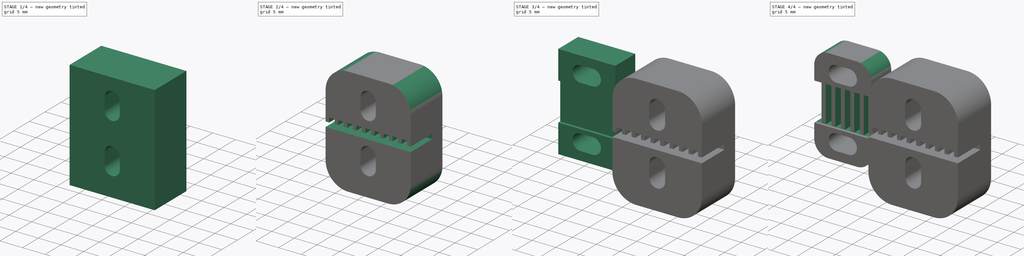
[diagram: build sequence overview — one tinted view per stage of 4, left to right]
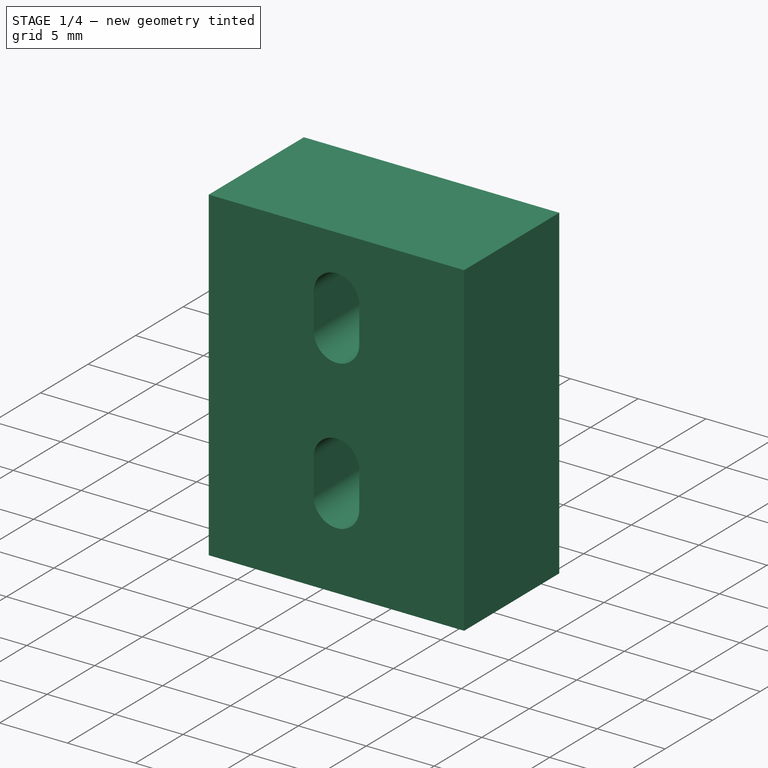
[diagram: stage 1 of 4 — iso view after this stage's code; geometry added in this stage tinted green]
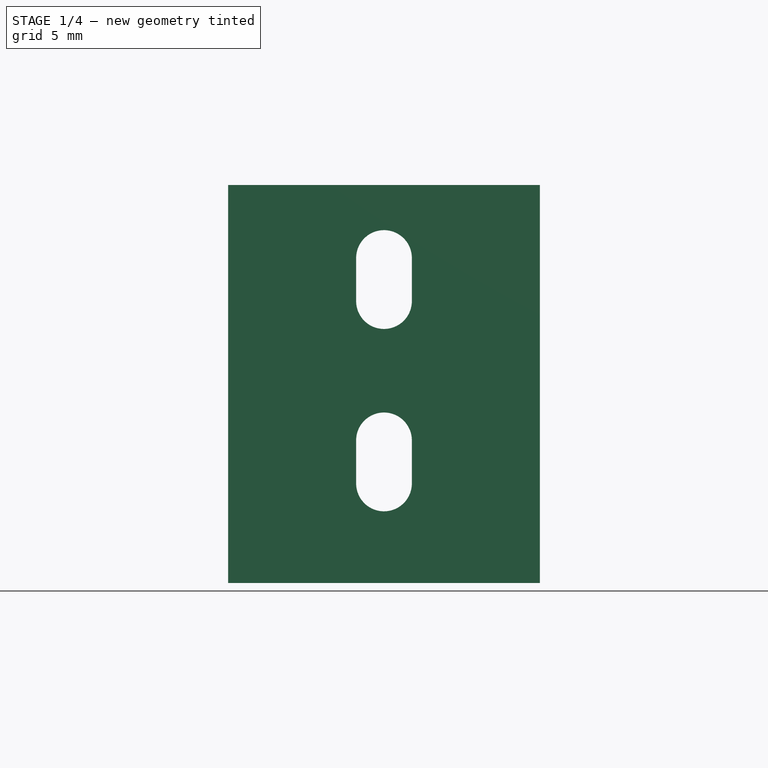
[diagram: stage 1 of 4 — front view after this stage's code; geometry added in this stage tinted green]
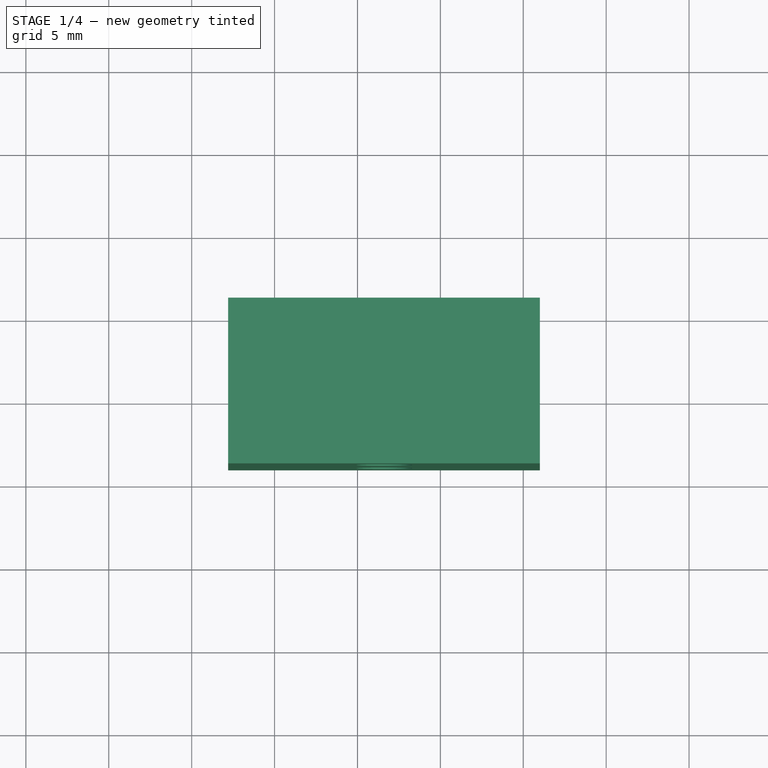
[diagram: stage 1 of 4 — top view after this stage's code; geometry added in this stage tinted green]
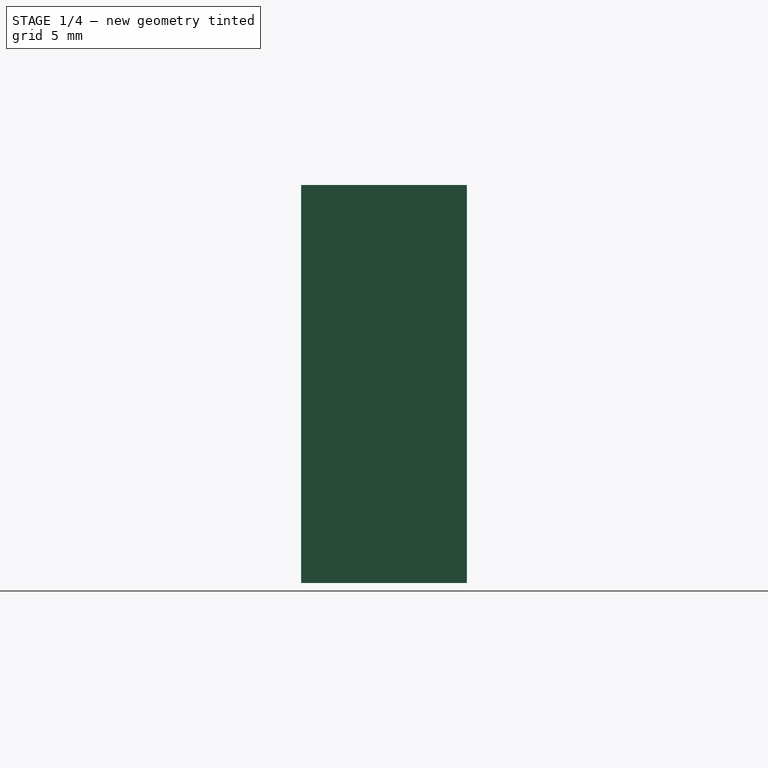
[diagram: stage 1 of 4 — right view after this stage's code; geometry added in this stage tinted green]
FCSTD DOCUMENT  (FreeCAD 0.16R6706 (Git))
Label: belt-mounts
License: All rights reserved
LicenseURL: http://en.wikipedia.org/wiki/All_rights_reserved
objects: Sketcher::SketchObject×6, PartDesign::Pocket×6, Part::Box×2, PartDesign::Fillet×2, App::DocumentObjectGroup×1
note: 22 computed .brp shape members not serialized (recipe doc carries the construction recipe); baked Part::Feature solids carry a one-line shape summary decoded from their .brp

FEATURE [Sketcher::SketchObject] Sketch012
  Placement = pos=(28,46,0) rot=(0,0.707107,0.707107;3.14159rad)
  Support = -> Box002 [Face4]
  sketch-geometry (8):
    g0: ArcOfCircle CenterX=-7.3 CenterY=16.5 CenterZ=0 NormalX=0 NormalY=0 NormalZ=1 Radius=1.68 StartAngle=1.5708 EndAngle=4.71239
    g1: ArcOfCircle CenterX=-4.7 CenterY=16.5 CenterZ=0 NormalX=0 NormalY=0 NormalZ=1 Radius=1.68 StartAngle=4.71239 EndAngle=7.85398
    g2: LineSegment StartX=-7.3 StartY=14.82 StartZ=0 EndX=-4.7 EndY=14.82 EndZ=0
    g3: LineSegment StartX=-7.3 StartY=18.18 StartZ=0 EndX=-4.7 EndY=18.18 EndZ=0
    g4: ArcOfCircle CenterX=-7.3 CenterY=3.5 CenterZ=0 NormalX=0 NormalY=0 NormalZ=1 Radius=1.68 StartAngle=1.5708 EndAngle=4.71239
    g5: ArcOfCircle CenterX=-4.7 CenterY=3.5 CenterZ=0 NormalX=0 NormalY=0 NormalZ=1 Radius=1.68 StartAngle=4.71239 EndAngle=7.85398
    g6: LineSegment StartX=-7.3 StartY=1.82 StartZ=0 EndX=-4.7 EndY=1.82 EndZ=0
    g7: LineSegment StartX=-7.3 StartY=5.18 StartZ=0 EndX=-4.7 EndY=5.18 EndZ=0
  constraints (20):
    c: Tangent(g0,g3) = 1.5708
    c: Tangent(g0,g2) = -1.5708
    c: Tangent(g2,g1) = -1.5708
    c: Tangent(g3,g1) = 1.5708
    c: Horizontal(g2)
    c: Equal(g0,g1)
    c: Tangent(g4,g7) = 1.5708
    c: Tangent(g4,g6) = -1.5708
    c: Tangent(g6,g5) = -1.5708
    c: Tangent(g7,g5) = 1.5708
    c: Horizontal(g6)
    c: Equal(g4,g5)
    c: Distance(g7) = 2.6
    c: Distance(g5,g5) = 3.36
    c: Equal(g7,g2)
    c: Distance(g0,g0) = 3.36
    c: Distance(g1,g5) = 13
    c: DistanceX(g-2,g5) = -4.7
    c: DistanceX(g-2,g1) = -4.7
    c: DistanceY(g-1,g4) = 3.5
FEATURE [Part::Box] Box003  label="belt block002"
  Height = 24
  Length = 18.8
  Placement = pos=(61,46,-3) rot=(0,0,1;3.14159rad)
  Width = 10
FEATURE [Sketcher::SketchObject] Sketch
  Placement = pos=(61,46,-3) rot=(0,0.707107,0.707107;3.14159rad)
  Support = -> Box003 [Face3]
  sketch-geometry (8):
    g0: ArcOfCircle CenterX=9.4 CenterY=19.6 CenterZ=0 NormalX=0 NormalY=0 NormalZ=1 Radius=1.68 StartAngle=0 EndAngle=3.14159
    g1: ArcOfCircle CenterX=9.4 CenterY=17 CenterZ=0 NormalX=0 NormalY=0 NormalZ=1 Radius=1.68 StartAngle=3.14159 EndAngle=6.28319
    g2: LineSegment StartX=7.72 StartY=19.6 StartZ=0 EndX=7.72 EndY=17 EndZ=0
    g3: LineSegment StartX=11.08 StartY=19.6 StartZ=0 EndX=11.08 EndY=17 EndZ=0
    g4: ArcOfCircle CenterX=9.4 CenterY=8.6 CenterZ=0 NormalX=0 NormalY=0 NormalZ=1 Radius=1.68 StartAngle=0 EndAngle=3.14159
    g5: ArcOfCircle CenterX=9.4 CenterY=6 CenterZ=0 NormalX=0 NormalY=0 NormalZ=1 Radius=1.68 StartAngle=3.14159 EndAngle=6.28319
    g6: LineSegment StartX=7.72 StartY=8.6 StartZ=0 EndX=7.72 EndY=6 EndZ=0
    g7: LineSegment StartX=11.08 StartY=8.6 StartZ=0 EndX=11.08 EndY=6 EndZ=0
  constraints (14):
    c: Tangent(g0,g2) = -1.5708
    c: Tangent(g2,g1) = -1.5708
    c: Vertical(g2)
    c: Equal(g0,g1)
    c: Tangent(g4,g6) = -1.5708
    c: Tangent(g6,g5) = -1.5708
    c: Vertical(g6)
    c: Equal(g4,g5)
    c: DistanceX(g-2,g0) = 9.4
    c: Distance(g0,g0) = 3.36
    c: Equal(g0,g4)
    c: DistanceX(g-2,g4) = 9.4
    c: DistanceY(g-1,g5) = 6
    c: Distance(g5,g1) = 11
FEATURE [PartDesign::Pocket] Pocket
  Length = 9
  Placement = pos=(61,46,-3) rot=(0,0,1;3.14159rad)
  Sketch = -> Sketch
  Type = 1
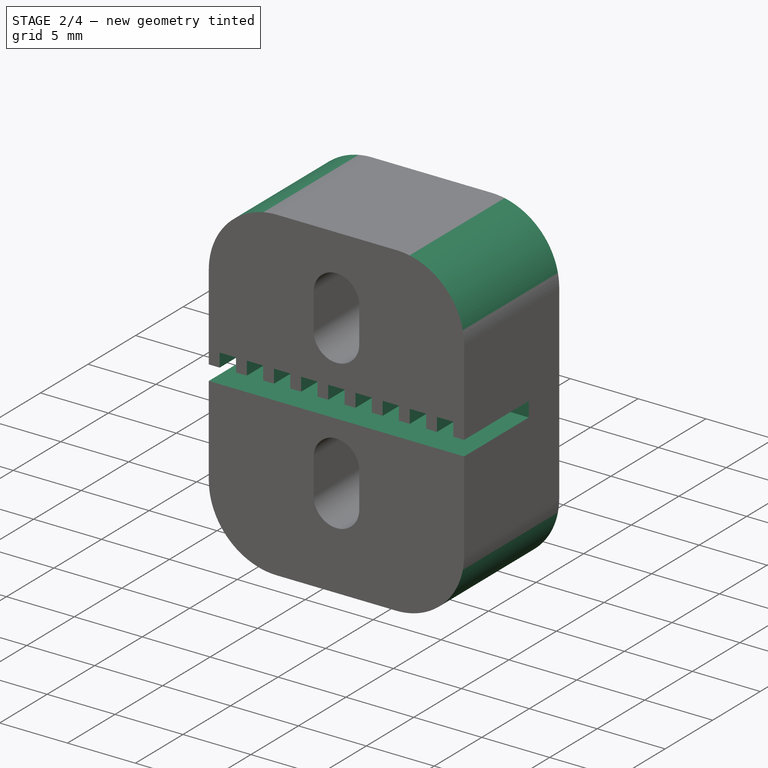
[diagram: stage 2 of 4 — iso view after this stage's code; geometry added in this stage tinted green]
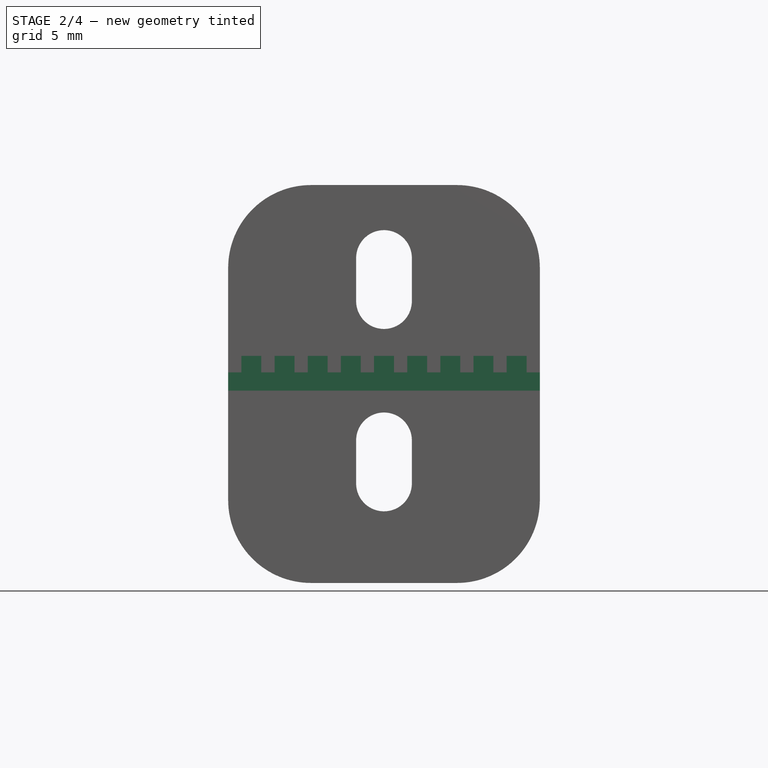
[diagram: stage 2 of 4 — front view after this stage's code; geometry added in this stage tinted green]
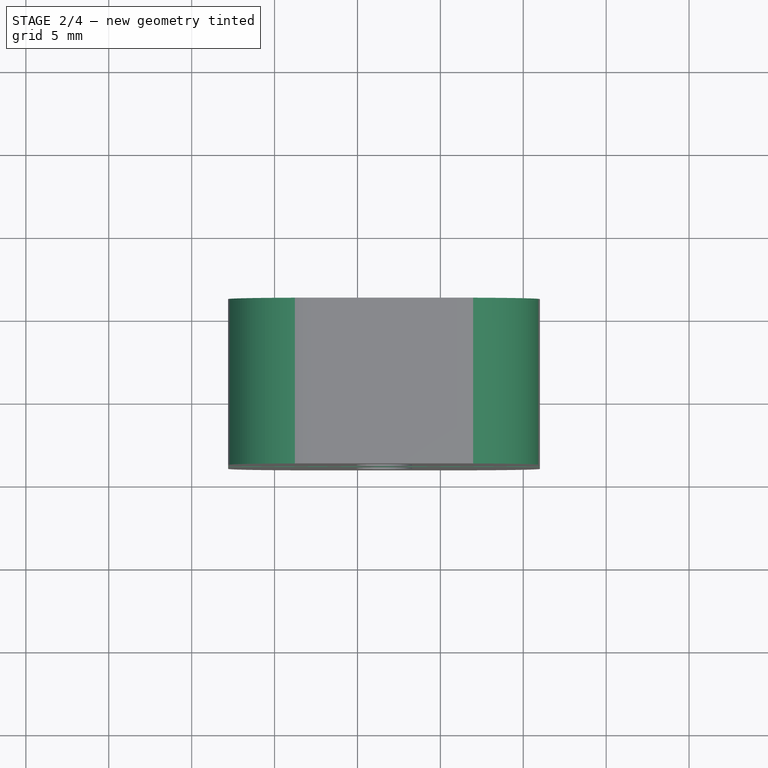
[diagram: stage 2 of 4 — top view after this stage's code; geometry added in this stage tinted green]
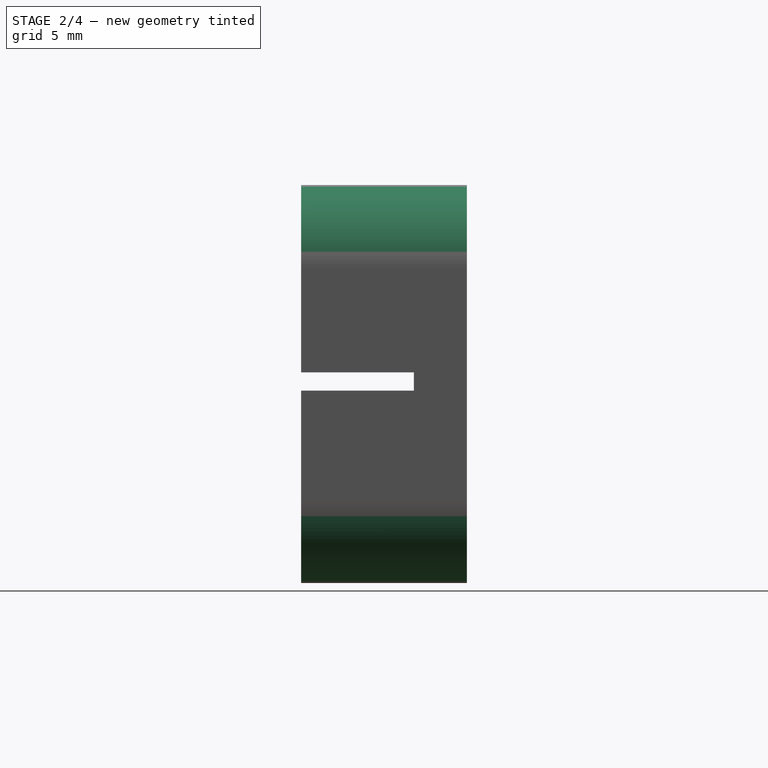
[diagram: stage 2 of 4 — right view after this stage's code; geometry added in this stage tinted green]
FEATURE [Sketcher::SketchObject] Sketch014
  Placement = pos=(61,36,-3) rot=(1,0,0;1.5708rad)
  Support = -> Pocket [Face4]
  sketch-geometry (4):
    g0: LineSegment StartX=-19.5035 StartY=12.7 StartZ=0 EndX=0.903535 EndY=12.7 EndZ=0
    g1: LineSegment StartX=0.903535 StartY=12.7 StartZ=0 EndX=0.903535 EndY=11.6 EndZ=0
    g2: LineSegment StartX=0.903535 StartY=11.6 StartZ=0 EndX=-19.5035 EndY=11.6 EndZ=0
    g3: LineSegment StartX=-19.5035 StartY=11.6 StartZ=0 EndX=-19.5035 EndY=12.7 EndZ=0
  constraints (10):
    c: Coincident(g0,g1)
    c: Coincident(g1,g2)
    c: Coincident(g2,g3)
    c: Coincident(g3,g0)
    c: Horizontal(g0)
    c: Horizontal(g2)
    c: Vertical(g1)
    c: Vertical(g3)
    c: Distance(g0,g2) = 1.1
    c: DistanceY(g-1,g1) = 11.6
FEATURE [PartDesign::Pocket] Pocket013
  Length = 6.8
  Placement = pos=(61,46,-3) rot=(0,0,1;3.14159rad)
  Sketch = -> Sketch014
  Type = 0
FEATURE [Sketcher::SketchObject] Sketch015
  Placement = pos=(61,46,9.7) rot=(0,1,0;3.14159rad)
  Support = -> Pocket013 [Face4]
  sketch-geometry (36):
    g0: LineSegment StartX=0.8 StartY=-3.2 StartZ=0 EndX=2 EndY=-3.2 EndZ=0
    g1: LineSegment StartX=2 StartY=-3.2 StartZ=0 EndX=2 EndY=-10.2 EndZ=0
    g2: LineSegment StartX=2 StartY=-10.2 StartZ=0 EndX=0.8 EndY=-10.2 EndZ=0
    g3: LineSegment StartX=0.8 StartY=-10.2 StartZ=0 EndX=0.8 EndY=-3.2 EndZ=0
    g4: LineSegment StartX=2.8 StartY=-10.2 StartZ=0 EndX=2.8 EndY=-3.2 EndZ=0
    g5: LineSegment StartX=2.8 StartY=-3.2 StartZ=0 EndX=4 EndY=-3.2 EndZ=0
    g6: LineSegment StartX=4 StartY=-3.2 StartZ=0 EndX=4 EndY=-10.2 EndZ=0
    g7: LineSegment StartX=4 StartY=-10.2 StartZ=0 EndX=2.8 EndY=-10.2 EndZ=0
    g8: LineSegment StartX=4.8 StartY=-3.2 StartZ=0 EndX=6 EndY=-3.2 EndZ=0
    g9: LineSegment StartX=6 StartY=-3.2 StartZ=0 EndX=6 EndY=-10.2 EndZ=0
    g10: LineSegment StartX=6 StartY=-10.2 StartZ=0 EndX=4.8 EndY=-10.2 EndZ=0
    g11: LineSegment StartX=4.8 StartY=-10.2 StartZ=0 EndX=4.8 EndY=-3.2 EndZ=0
    g12: LineSegment StartX=8 StartY=-10.2 StartZ=0 EndX=6.8 EndY=-10.2 EndZ=0
    g13: LineSegment StartX=6.8 StartY=-10.2 StartZ=0 EndX=6.8 EndY=-3.2 EndZ=0
    g14: LineSegment StartX=6.8 StartY=-3.2 StartZ=0 EndX=8 EndY=-3.2 EndZ=0
    g15: LineSegment StartX=8 StartY=-3.2 StartZ=0 EndX=8 EndY=-10.2 EndZ=0
    g16: LineSegment StartX=10 StartY=-10.2 StartZ=0 EndX=8.8 EndY=-10.2 EndZ=0
    g17: LineSegment StartX=8.8 StartY=-10.2 StartZ=0 EndX=8.8 EndY=-3.2 EndZ=0
    g18: LineSegment StartX=8.8 StartY=-3.2 StartZ=0 EndX=10 EndY=-3.2 EndZ=0
    g19: LineSegment StartX=10 StartY=-3.2 StartZ=0 EndX=10 EndY=-10.2 EndZ=0
    g20: LineSegment StartX=10.8 StartY=-3.2 StartZ=0 EndX=12 EndY=-3.2 EndZ=0
    g21: LineSegment StartX=12 StartY=-3.2 StartZ=0 EndX=12 EndY=-10.2 EndZ=0
    g22: LineSegment StartX=10.8 StartY=-10.2 StartZ=0 EndX=10.8 EndY=-3.2 EndZ=0
    g23: LineSegment StartX=12 StartY=-10.2 StartZ=0 EndX=10.8 EndY=-10.2 EndZ=0
    g24: LineSegment StartX=12.8 StartY=-3.2 StartZ=0 EndX=14 EndY=-3.2 EndZ=0
    g25: LineSegment StartX=12.8 StartY=-10.2 StartZ=0 EndX=12.8 EndY=-3.2 EndZ=0
    g26: LineSegment StartX=14 StartY=-3.2 StartZ=0 EndX=14 EndY=-10.2 EndZ=0
    g27: LineSegment StartX=14 StartY=-10.2 StartZ=0 EndX=12.8 EndY=-10.2 EndZ=0
    g28: LineSegment StartX=14.8 StartY=-3.2 StartZ=0 EndX=16 EndY=-3.2 EndZ=0
    g29: LineSegment StartX=14.8 StartY=-10.2 StartZ=0 EndX=14.8 EndY=-3.2 EndZ=0
    g30: LineSegment StartX=16 StartY=-3.2 StartZ=0 EndX=16 EndY=-10.2 EndZ=0
    g31: LineSegment StartX=16 StartY=-10.2 StartZ=0 EndX=14.8 EndY=-10.2 EndZ=0
    g32: LineSegment StartX=16.8 StartY=-3.2 StartZ=0 EndX=18 EndY=-3.2 EndZ=0
    g33: LineSegment StartX=18 StartY=-3.2 StartZ=0 EndX=18 EndY=-10.2 EndZ=0
    g34: LineSegment StartX=16.8 StartY=-10.2 StartZ=0 EndX=16.8 EndY=-3.2 EndZ=0
    g35: LineSegment StartX=18 StartY=-10.2 StartZ=0 EndX=16.8 EndY=-10.2 EndZ=0
  constraints (108):
    c: Coincident(g0,g1)
    c: Coincident(g1,g2)
    c: Coincident(g2,g3)
    c: Coincident(g3,g0)
    c: Horizontal(g0)
    c: Horizontal(g2)
    c: Vertical(g1)
    c: Vertical(g3)
    c: DistanceX(g-2,g0) = 0.8
    c: Distance(g1,g2) = 1.2
    c: Coincident(g5,g6)
    c: Coincident(g6,g7)
    c: Coincident(g7,g4)
    c: Coincident(g4,g5)
    c: Horizontal(g5)
    c: Horizontal(g7)
    c: Vertical(g6)
    c: Vertical(g4)
    c: Distance(g6,g7) = 1.2
    c: Distance(g4,g1) = 0.8
    c: Equal(g1,g4)
    c: Distance(g3) = 7
    c: Coincident(g8,g9)
    c: Coincident(g9,g10)
    c: Coincident(g10,g11)
    c: Coincident(g11,g8)
    c: Horizontal(g8)
    c: Horizontal(g10)
    c: Vertical(g9)
    c: Vertical(g11)
    c: Distance(g9,g10) = 1.2
    c: Distance(g6,g10) = 0.8
    c: Equal(g4,g11)
    c: Coincident(g14,g15)
    c: Coincident(g15,g12)
    c: Coincident(g12,g13)
    c: Coincident(g13,g14)
    c: Horizontal(g14)
    c: Horizontal(g12)
    c: Vertical(g15)
    c: Vertical(g13)
    c: Distance(g15,g12) = 1.2
    c: Equal(g13,g11)
    c: Distance(g9,g12) = 0.8
    c: Coincident(g18,g19)
    c: Coincident(g19,g16)
    c: Coincident(g16,g17)
    c: Coincident(g17,g18)
    c: Horizontal(g18)
    c: Horizontal(g16)
    c: Vertical(g19)
    c: Vertical(g17)
    c: Distance(g19,g16) = 1.2
    c: Equal(g17,g13)
    c: Distance(g16,g12) = 0.8
    c: Coincident(g20,g21)
    c: Coincident(g21,g23)
    c: Coincident(g23,g22)
    c: Coincident(g22,g20)
    c: Horizontal(g20)
    c: Horizontal(g23)
    c: Vertical(g21)
    c: Vertical(g22)
    c: Distance(g21,g23) = 1.2
    c: Equal(g22,g17)
    c: Distance(g16,g22) = 0.8
    c: Coincident(g24,g26)
    c: Coincident(g26,g27)
    c: Coincident(g27,g25)
    c: Coincident(g25,g24)
    c: Horizontal(g24)
    c: Horizontal(g27)
    c: Vertical(g26)
    c: Vertical(g25)
    c: Distance(g26,g27) = 1.2
    c: Equal(g25,g22)
    c: Distance(g21,g25) = 0.8
    c: Coincident(g28,g30)
    c: Coincident(g30,g31)
    c: Coincident(g31,g29)
    c: Coincident(g29,g28)
    c: Horizontal(g28)
    c: Horizontal(g31)
    c: Vertical(g30)
    c: Vertical(g29)
    c: Distance(g30,g31) = 1.2
    c: Equal(g25,g29)
    c: Distance(g26,g29) = 0.8
    c: Coincident(g32,g33)
    c: Coincident(g33,g35)
    c: Coincident(g35,g34)
    c: Coincident(g34,g32)
    c: Horizontal(g32)
    c: Horizontal(g35)
    c: Vertical(g33)
    c: Vertical(g34)
    c: Distance(g33,g35) = 1.2
    c: Distance(g30,g34) = 0.8
    c: Equal(g30,g34)
    c: DistanceY(g-1,g0) = -3.2
    c: DistanceY(g-1,g4) = -3.2
    c: DistanceY(g-1,g8) = -3.2
    c: DistanceY(g-1,g13) = -3.2
    c: DistanceY(g-1,g17) = -3.2
    c: DistanceY(g-1,g20) = -3.2
    c: DistanceY(g-1,g24) = -3.2
    c: DistanceY(g-1,g28) = -3.2
    c: DistanceY(g-1,g32) = -3.2
FEATURE [PartDesign::Pocket] Pocket014
  Length = 1
  Placement = pos=(61,46,-3) rot=(0,0,1;3.14159rad)
  Sketch = -> Sketch015
  Type = 0
FEATURE [PartDesign::Fillet] Fillet
  Base = -> Pocket014 [Edge10,Edge1,Edge7,Edge84]
  Placement = pos=(61,46,-3) rot=(0,0,1;3.14159rad)
  Radius = 5
FEATURE [App::DocumentObjectGroup] Group  label="one"
  Group = -> [Fillet,Pocket014,Box003,Pocket,Pocket013]
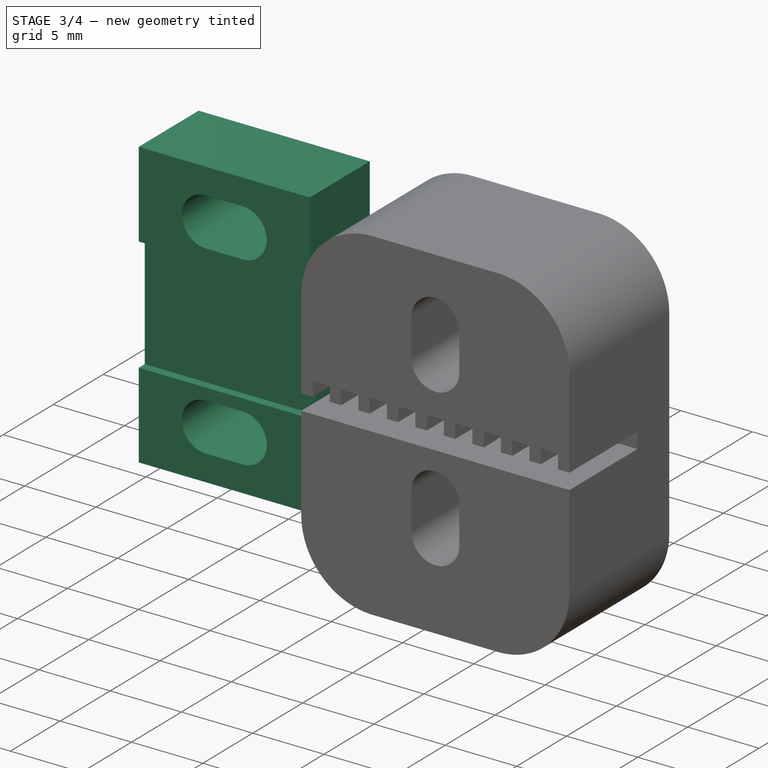
[diagram: stage 3 of 4 — iso view after this stage's code; geometry added in this stage tinted green]
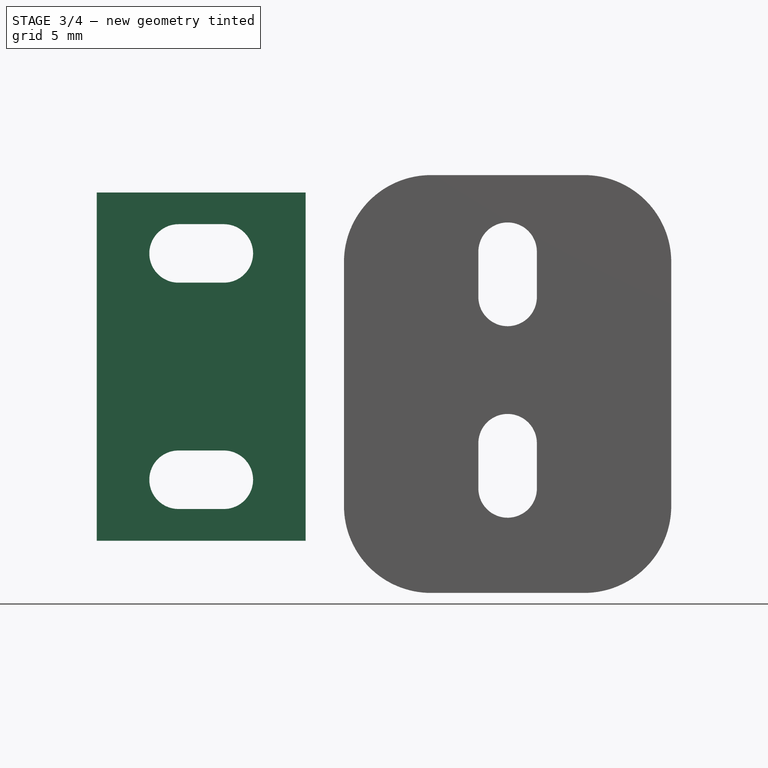
[diagram: stage 3 of 4 — front view after this stage's code; geometry added in this stage tinted green]
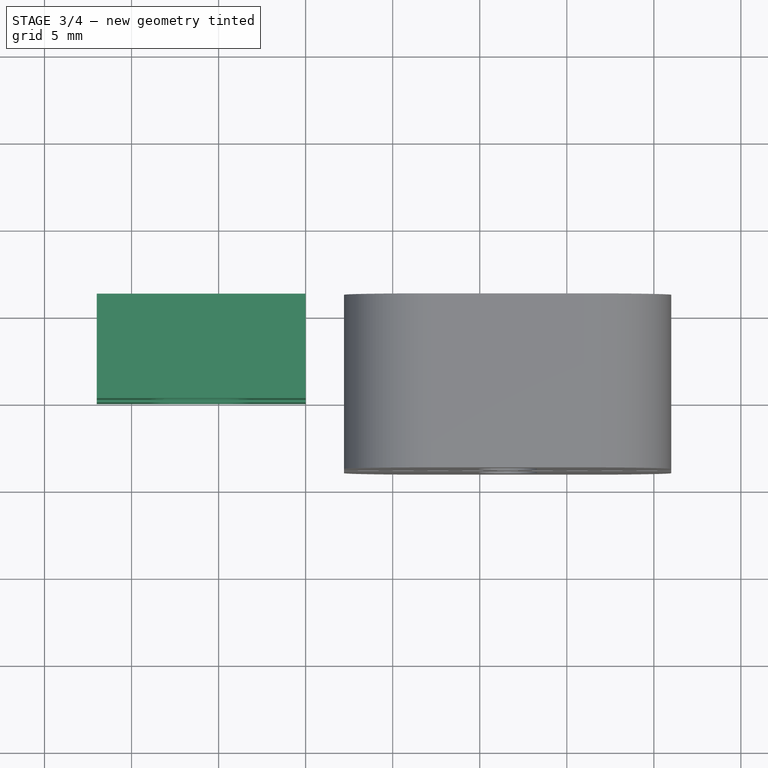
[diagram: stage 3 of 4 — top view after this stage's code; geometry added in this stage tinted green]
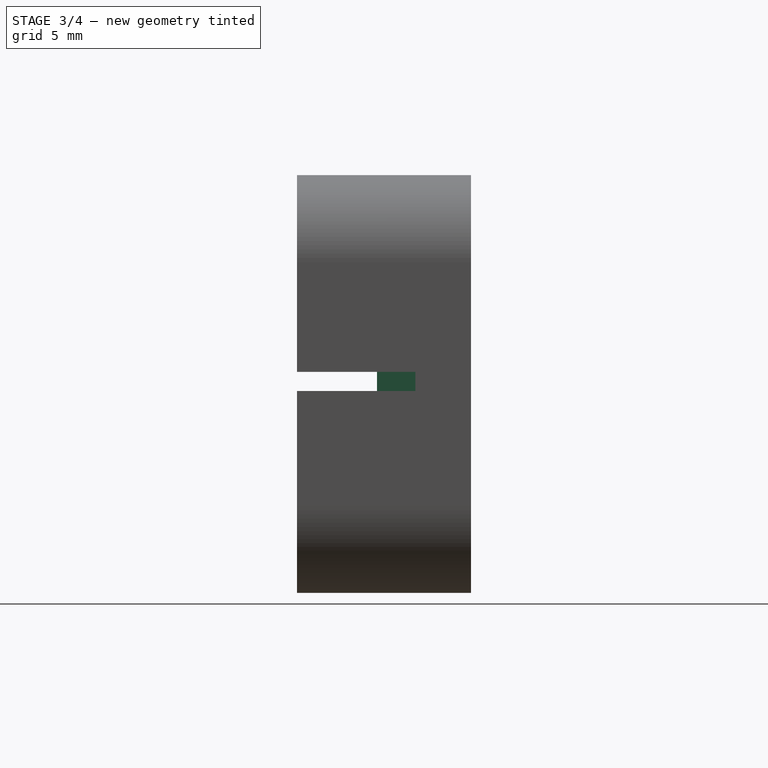
[diagram: stage 3 of 4 — right view after this stage's code; geometry added in this stage tinted green]
FEATURE [Part::Box] Box002  label="belt block001"
  Height = 20
  Length = 12
  Placement = pos=(28,40,0) rot=(0,0,1;0rad)
  Width = 6
FEATURE [PartDesign::Pocket] Pocket015
  Length = 5
  Placement = pos=(28,40,0) rot=(0,0,1;0rad)
  Sketch = -> Sketch012
  Type = 1
FEATURE [Sketcher::SketchObject] Sketch013
  Placement = pos=(28,40,0) rot=(0.57735,-0.57735,-0.57735;2.0944rad)
  Support = -> Pocket015 [Face1]
  sketch-geometry (4):
    g0: LineSegment StartX=-0.6 StartY=14 StartZ=0 EndX=0 EndY=14 EndZ=0
    g1: LineSegment StartX=0 StartY=14 StartZ=0 EndX=0 EndY=6 EndZ=0
    g2: LineSegment StartX=0 StartY=6 StartZ=0 EndX=-0.6 EndY=6 EndZ=0
    g3: LineSegment StartX=-0.6 StartY=6 StartZ=0 EndX=-0.6 EndY=14 EndZ=0
  constraints (12):
    c: Coincident(g0,g1)
    c: Coincident(g1,g2)
    c: Coincident(g2,g3)
    c: Coincident(g3,g0)
    c: Horizontal(g0)
    c: Horizontal(g2)
    c: Vertical(g1)
    c: Vertical(g3)
    c: Distance(g1) = 8
    c: Distance(g2,g1) = 0.6
    c: DistanceX(g-2,g1) = 0
    c: DistanceY(g-1,g2) = 6
FEATURE [PartDesign::Pocket] Pocket016
  Length = 5
  Placement = pos=(28,40,0) rot=(0,0,1;0rad)
  Sketch = -> Sketch013
  Type = 1
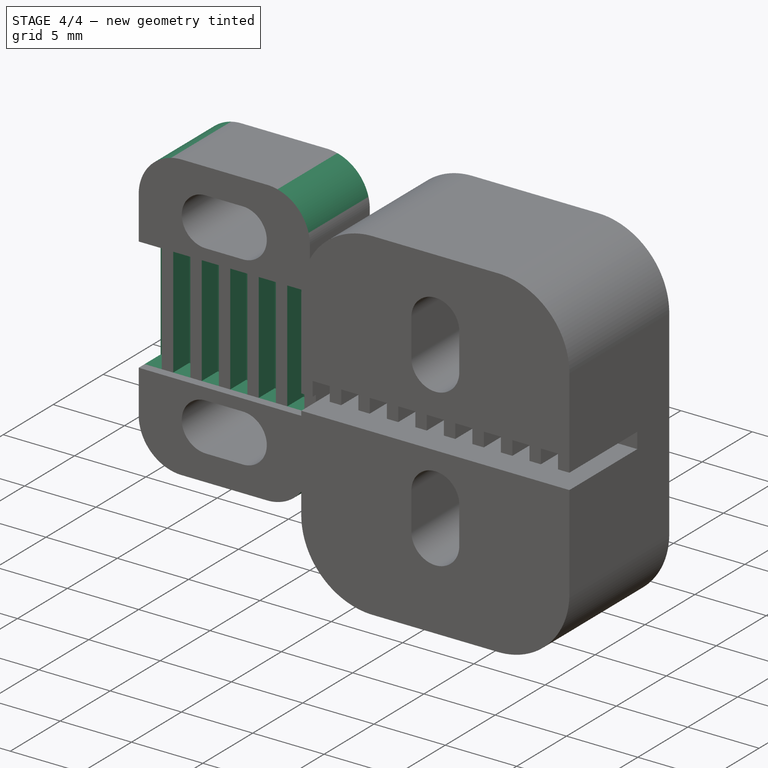
[diagram: stage 4 of 4 — iso view after this stage's code; geometry added in this stage tinted green]
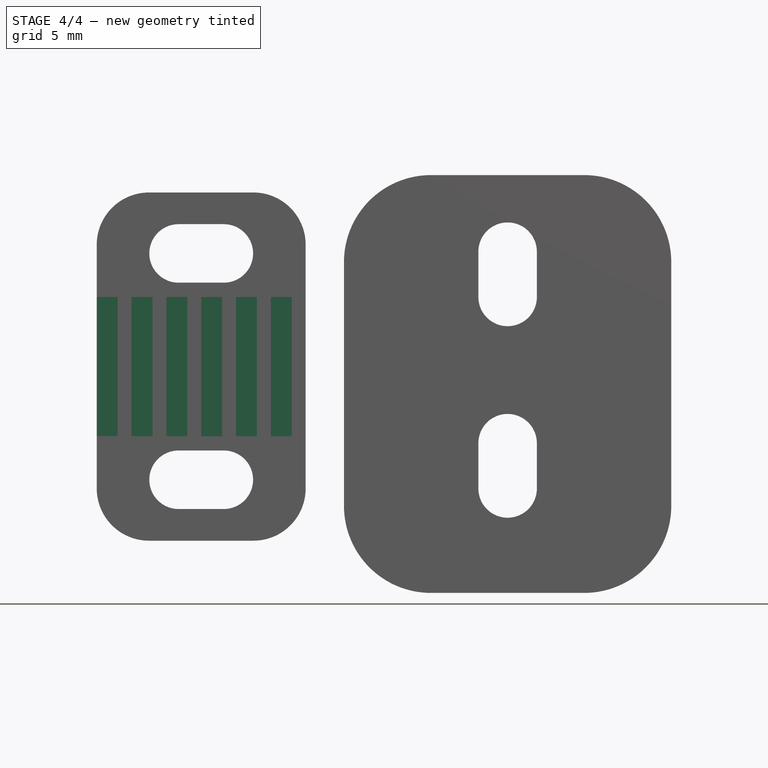
[diagram: stage 4 of 4 — front view after this stage's code; geometry added in this stage tinted green]
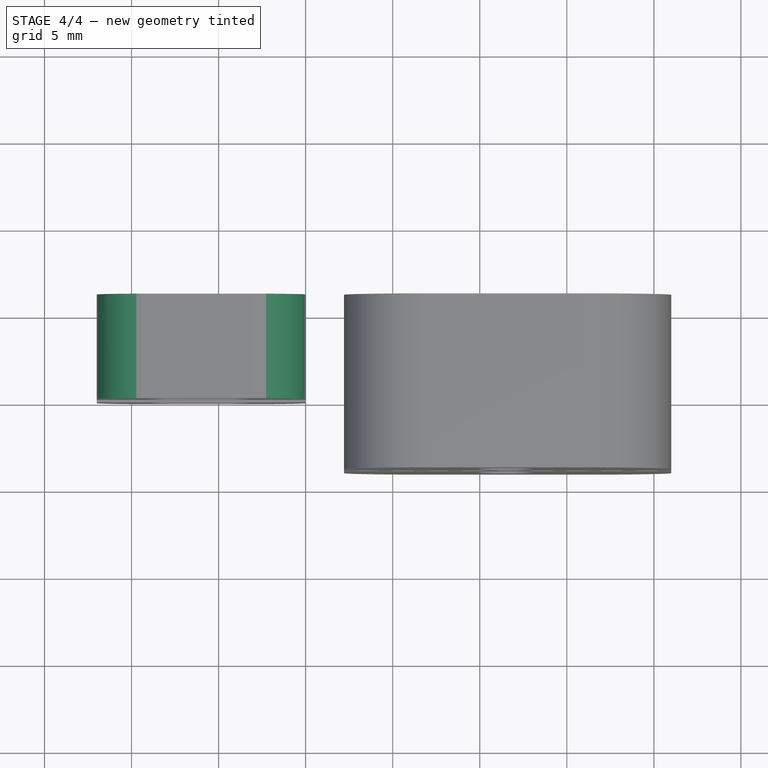
[diagram: stage 4 of 4 — top view after this stage's code; geometry added in this stage tinted green]
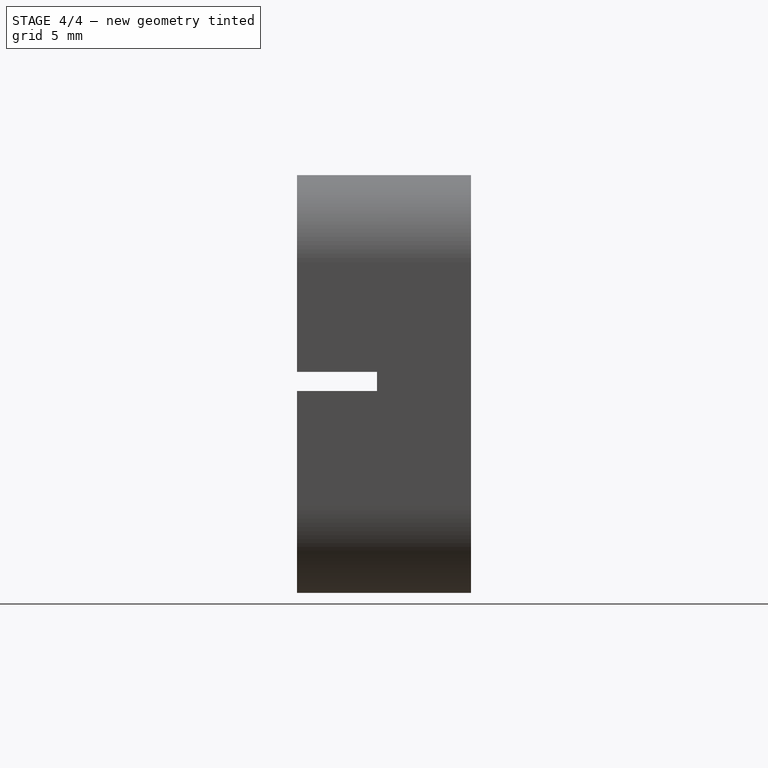
[diagram: stage 4 of 4 — right view after this stage's code; geometry added in this stage tinted green]
FEATURE [Sketcher::SketchObject] Sketch011
  Placement = pos=(28,40.6,0) rot=(1,0,0;1.5708rad)
  Support = -> Pocket016 [Face4]
  sketch-geometry (24):
    g0: LineSegment StartX=7.19999 StartY=14 StartZ=0 EndX=5.99999 EndY=14 EndZ=0
    g1: LineSegment StartX=5.99999 StartY=14 StartZ=0 EndX=5.99999 EndY=6 EndZ=0
    g2: LineSegment StartX=5.99999 StartY=6 StartZ=0 EndX=7.19999 EndY=6 EndZ=0
    g3: LineSegment StartX=7.19999 StartY=6 StartZ=0 EndX=7.19999 EndY=14 EndZ=0
    g4: LineSegment StartX=5.19999 StartY=14 StartZ=0 EndX=3.99999 EndY=14 EndZ=0
    g5: LineSegment StartX=3.99999 StartY=14 StartZ=0 EndX=3.99999 EndY=6 EndZ=0
    g6: LineSegment StartX=3.99999 StartY=6 StartZ=0 EndX=5.19999 EndY=6 EndZ=0
    g7: LineSegment StartX=5.19999 StartY=6 StartZ=0 EndX=5.19999 EndY=14 EndZ=0
    g8: LineSegment StartX=3.19999 StartY=14 StartZ=0 EndX=1.99999 EndY=14 EndZ=0
    g9: LineSegment StartX=1.99999 StartY=14 StartZ=0 EndX=1.99999 EndY=6 EndZ=0
    g10: LineSegment StartX=1.99999 StartY=6 StartZ=0 EndX=3.19999 EndY=6 EndZ=0
    g11: LineSegment StartX=3.19999 StartY=6 StartZ=0 EndX=3.19999 EndY=14 EndZ=0
    g12: LineSegment StartX=1.2 StartY=14.0043 StartZ=0 EndX=0 EndY=14.0043 EndZ=0
    g13: LineSegment StartX=0 StartY=14.0043 StartZ=0 EndX=0 EndY=6.00427 EndZ=0
    g14: LineSegment StartX=0 StartY=6.00427 StartZ=0 EndX=1.2 EndY=6.00427 EndZ=0
    g15: LineSegment StartX=1.2 StartY=6.00427 StartZ=0 EndX=1.2 EndY=14.0043 EndZ=0
    g16: LineSegment StartX=7.99999 StartY=14 StartZ=0 EndX=9.19999 EndY=14 EndZ=0
    g17: LineSegment StartX=9.19999 StartY=14 StartZ=0 EndX=9.19999 EndY=6 EndZ=0
    g18: LineSegment StartX=9.19999 StartY=6 StartZ=0 EndX=7.99999 EndY=6 EndZ=0
    g19: LineSegment StartX=7.99999 StartY=6 StartZ=0 EndX=7.99999 EndY=14 EndZ=0
    g20: LineSegment StartX=9.99999 StartY=14 StartZ=0 EndX=11.2 EndY=14 EndZ=0
    g21: LineSegment StartX=11.2 StartY=14 StartZ=0 EndX=11.2 EndY=6 EndZ=0
    g22: LineSegment StartX=11.2 StartY=6 StartZ=0 EndX=9.99999 EndY=6 EndZ=0
    g23: LineSegment StartX=9.99999 StartY=6 StartZ=0 EndX=9.99999 EndY=14 EndZ=0
  constraints (72):
    c: Coincident(g0,g1)
    c: Coincident(g1,g2)
    c: Coincident(g2,g3)
    c: Coincident(g3,g0)
    c: Horizontal(g0)
    c: Horizontal(g2)
    c: Vertical(g1)
    c: Vertical(g3)
    c: Coincident(g4,g5)
    c: Coincident(g5,g6)
    c: Coincident(g6,g7)
    c: Coincident(g7,g4)
    c: Horizontal(g4)
    c: Horizontal(g6)
    c: Vertical(g5)
    c: Vertical(g7)
    c: Coincident(g8,g9)
    c: Coincident(g9,g10)
    c: Coincident(g10,g11)
    c: Coincident(g11,g8)
    c: Horizontal(g8)
    c: Horizontal(g10)
    c: Vertical(g9)
    c: Vertical(g11)
    c: Distance(g3) = 8
    c: DistanceY(g-1,g2) = 6
    c: Equal(g1,g5)
    c: Equal(g5,g9)
    c: Distance(g1,g2) = 1.2
    c: Equal(g2,g6)
    c: Distance(g0,g4) = 0.8
    c: Distance(g4,g8) = 0.8
    c: Equal(g2,g6)
    c: Equal(g6,g10)
    c: Coincident(g12,g13)
    c: Coincident(g13,g14)
    c: Coincident(g14,g15)
    c: Coincident(g15,g12)
    c: Horizontal(g12)
    c: Horizontal(g14)
    c: Vertical(g13)
    c: Vertical(g15)
    c: Equal(g10,g14)
    c: Distance(g8,g12) = 0.8
    c: Equal(g3,g15)
    c: DistanceX(g-2,g13) = 0
    c: Coincident(g16,g17)
    c: Coincident(g17,g18)
    c: Coincident(g18,g19)
    c: Coincident(g19,g16)
    c: Horizontal(g16)
    c: Horizontal(g18)
    c: Vertical(g17)
    c: Vertical(g19)
    c: Equal(g3,g17)
    c: DistanceY(g-1,g17) = 6
    c: Distance(g0,g16) = 0.8
    c: Equal(g2,g18)
    c: Coincident(g20,g21)
    c: Coincident(g21,g22)
    c: Coincident(g22,g23)
    c: Coincident(g23,g20)
    c: Horizontal(g20)
    c: Horizontal(g22)
    c: Vertical(g21)
    c: Vertical(g23)
    c: DistanceY(g-1,g21) = 6
    c: DistanceY(g-1,g6) = 6
    c: DistanceY(g-1,g9) = 6
    c: Equal(g22,g18)
    c: Equal(g23,g17)
    c: Distance(g17,g22) = 0.8
FEATURE [PartDesign::Pocket] Pocket017
  Length = 1.6
  Placement = pos=(28,40,0) rot=(0,0,1;0rad)
  Sketch = -> Sketch011
  Type = 0
FEATURE [PartDesign::Fillet] Fillet006
  Base = -> Pocket017 [Edge10,Edge12,Edge63,Edge74]
  Placement = pos=(28,40,0) rot=(0,0,1;0rad)
  Radius = 3
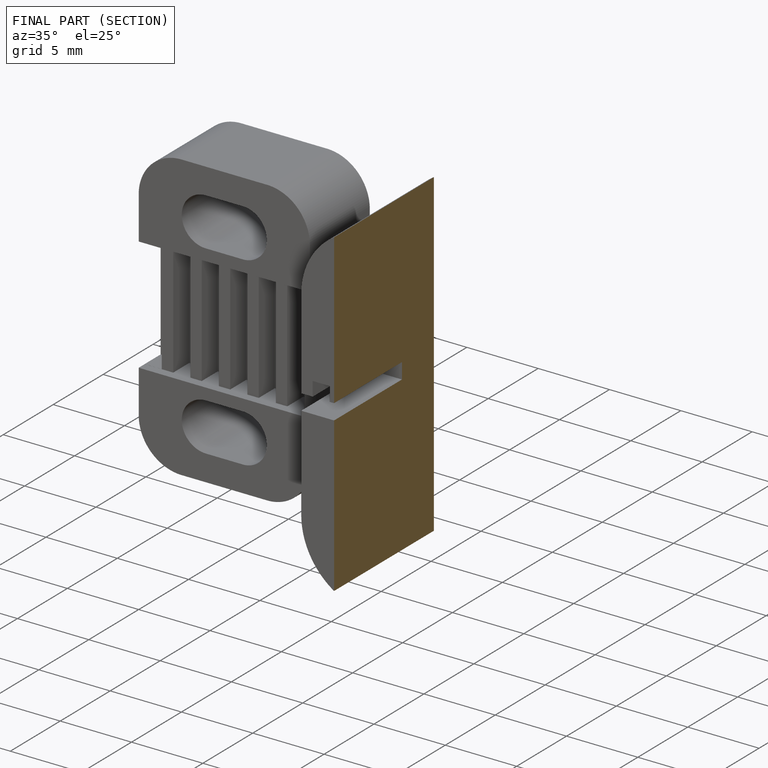
[diagram: finished part — half-section view (interior)]
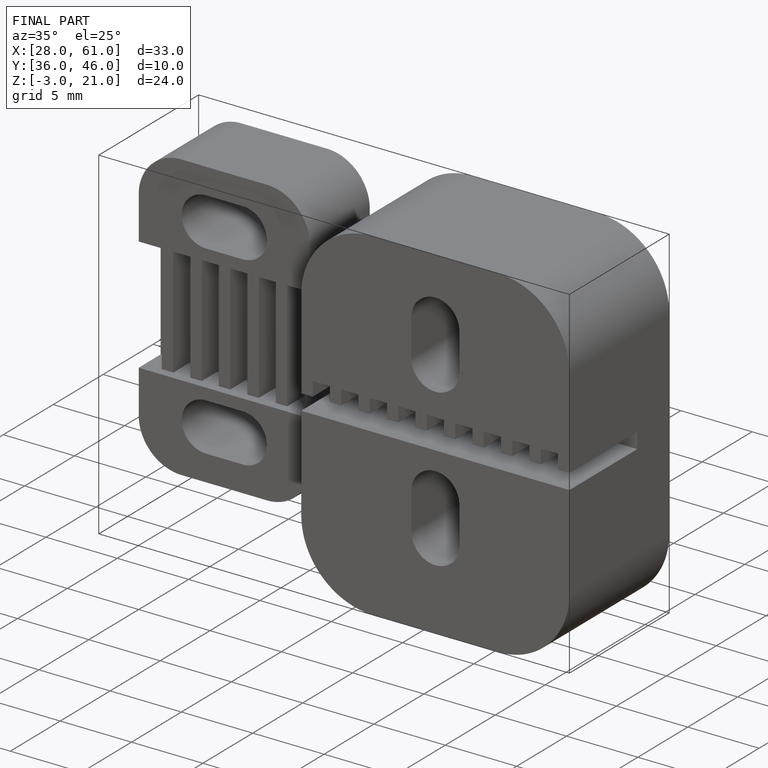
[diagram: finished part — iso view with bounding-box wireframe]
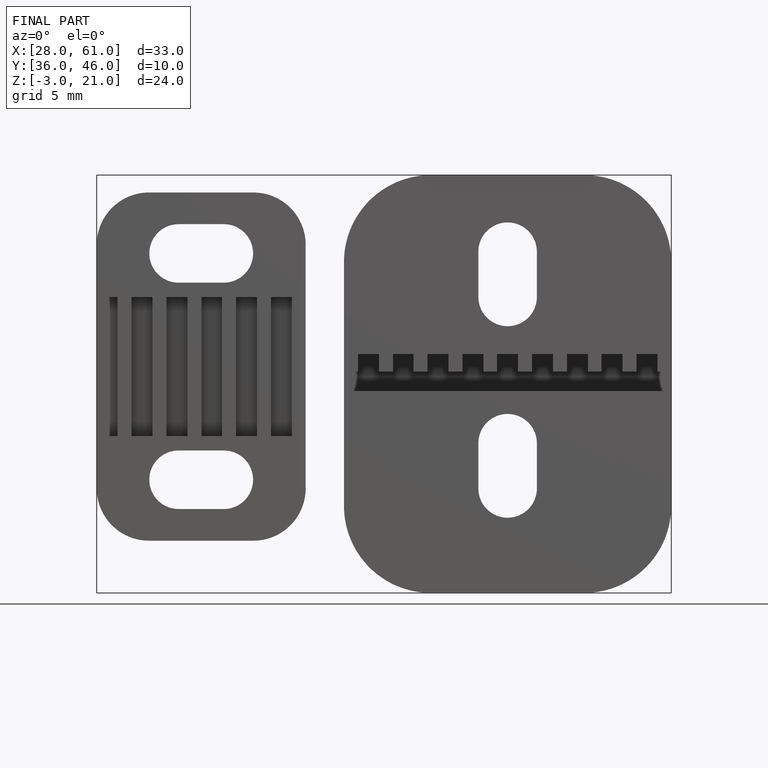
[diagram: finished part — front view with bounding-box wireframe]
